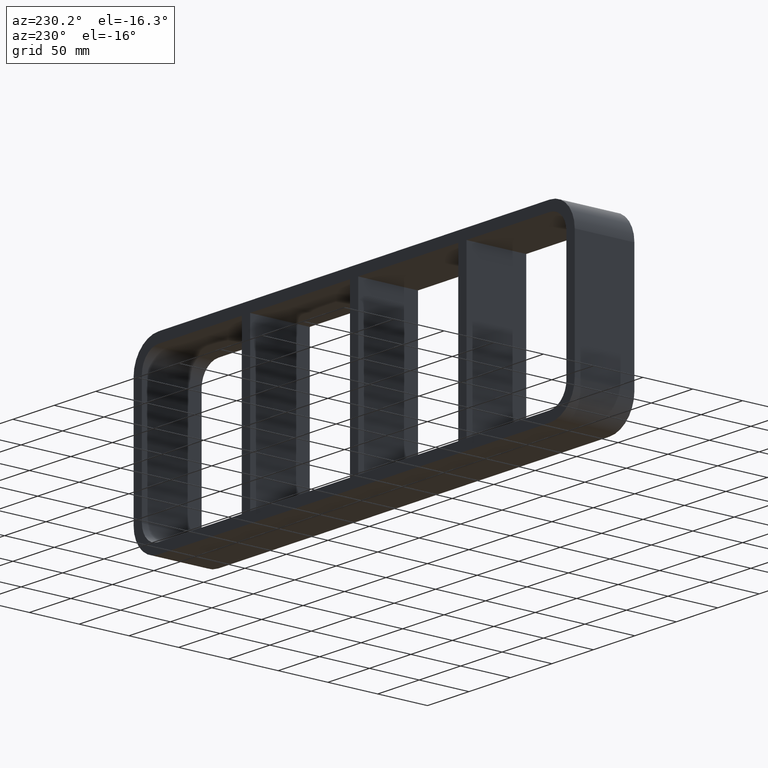
[diagram: clean part render]
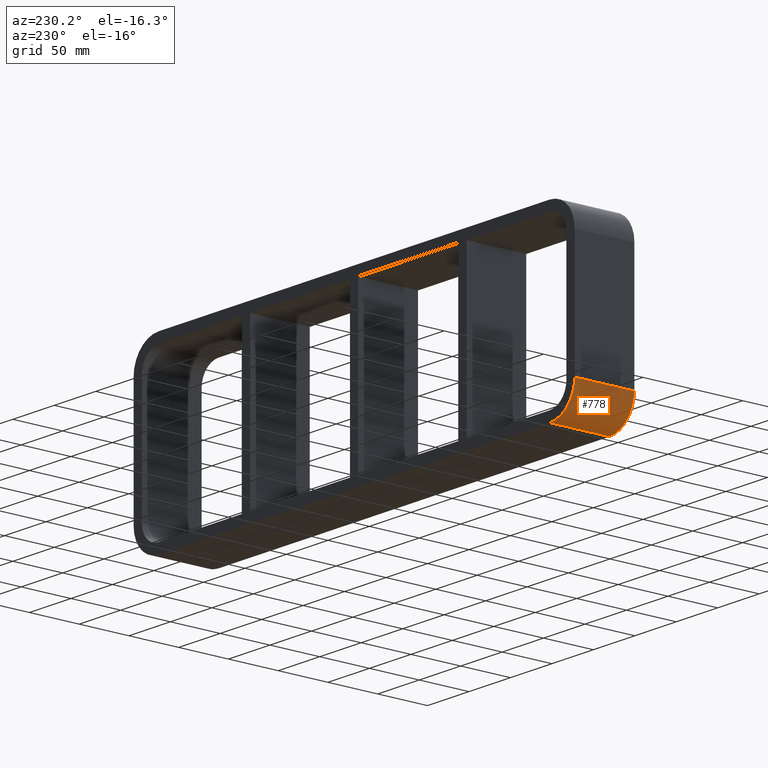
[diagram: same view with one face highlighted and labeled with its STEP entity id]
A machine part, auxiliary view. The second image highlights one B-rep face of the part: STEP entity #778.
In plain terms, the highlighted cylindrical surface (partial cylindrical patch) has radius 30 mm, axis along (0, 1, 0).
Its self-contained STEP definition (entity closure, byte-faithful):
#602=CARTESIAN_POINT('',(-266.0,-3.0,-59.750000000000014));
#603=VERTEX_POINT('',#602);
#610=CARTESIAN_POINT('',(-236.0,-3.0,-89.750000000000014));
#611=VERTEX_POINT('',#610);
#612=CARTESIAN_POINT('',(-236.0,-3.0,-59.750000000000014));
#613=DIRECTION('',(0.0,1.0,0.0));
#614=DIRECTION('',(-0.707106781186547,0.0,-0.707106781186547));
#615=AXIS2_PLACEMENT_3D('',#612,#613,#614);
#616=CIRCLE('',#615,30.0);
#617=EDGE_CURVE('',#611,#603,#616,.T.);
#747=CARTESIAN_POINT('',(-236.0,0.0,-59.750000000000014));
#748=DIRECTION('',(0.0,1.0,0.0));
#749=DIRECTION('',(-0.707106781186547,0.0,-0.707106781186547));
#750=AXIS2_PLACEMENT_3D('',#747,#748,#749);
#751=CYLINDRICAL_SURFACE('',#750,30.000000000000004);
#752=CARTESIAN_POINT('',(-266.0,57.0,-59.750000000000014));
#753=VERTEX_POINT('',#752);
#754=CARTESIAN_POINT('',(-236.0,57.0,-89.750000000000014));
#755=VERTEX_POINT('',#754);
#756=CARTESIAN_POINT('',(-236.0,57.0,-59.750000000000014));
#757=DIRECTION('',(0.0,-1.0,0.0));
#758=DIRECTION('',(-0.707106781186547,0.0,-0.707106781186547));
#759=AXIS2_PLACEMENT_3D('',#756,#757,#758);
#760=CIRCLE('',#759,30.0);
#761=EDGE_CURVE('',#753,#755,#760,.T.);
#762=ORIENTED_EDGE('',*,*,#761,.T.);
#763=CARTESIAN_POINT('',(-236.0,57.0,-89.750000000000014));
#764=DIRECTION('',(0.0,-1.0,0.0));
#765=VECTOR('',#764,60.0);
#766=LINE('',#763,#765);
#767=EDGE_CURVE('',#755,#611,#766,.T.);
#768=ORIENTED_EDGE('',*,*,#767,.T.);
#769=ORIENTED_EDGE('',*,*,#617,.T.);
#770=CARTESIAN_POINT('',(-266.0,-3.0,-59.750000000000014));
#771=DIRECTION('',(0.0,1.0,0.0));
#772=VECTOR('',#771,60.0);
#773=LINE('',#770,#772);
#774=EDGE_CURVE('',#603,#753,#773,.T.);
#775=ORIENTED_EDGE('',*,*,#774,.T.);
#776=EDGE_LOOP('',(#762,#768,#769,#775));
#777=FACE_OUTER_BOUND('',#776,.T.);
#778=ADVANCED_FACE('',(#777),#751,.T.);